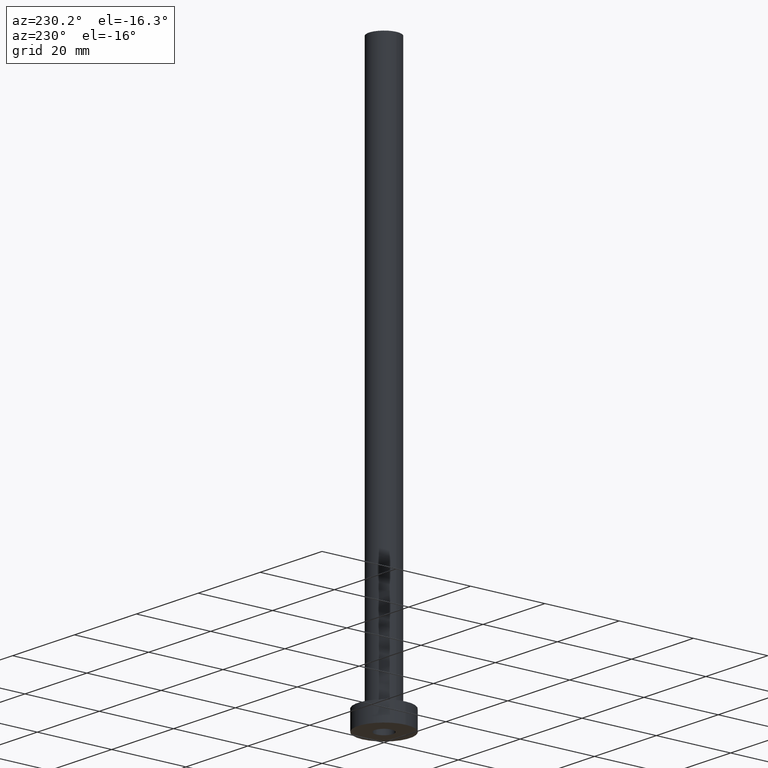
[diagram: clean part render]
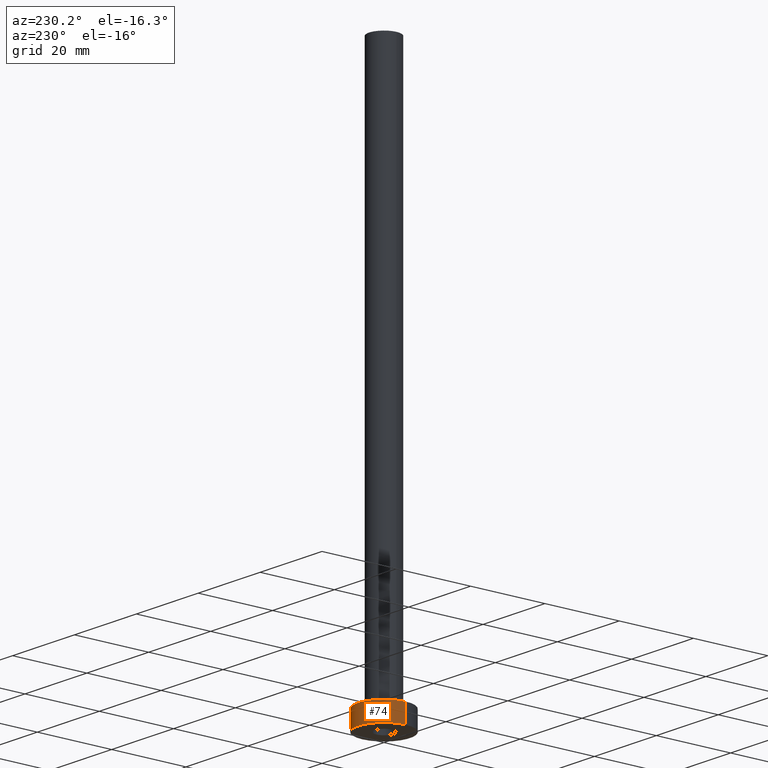
[diagram: same view with one face highlighted and labeled with its STEP entity id]
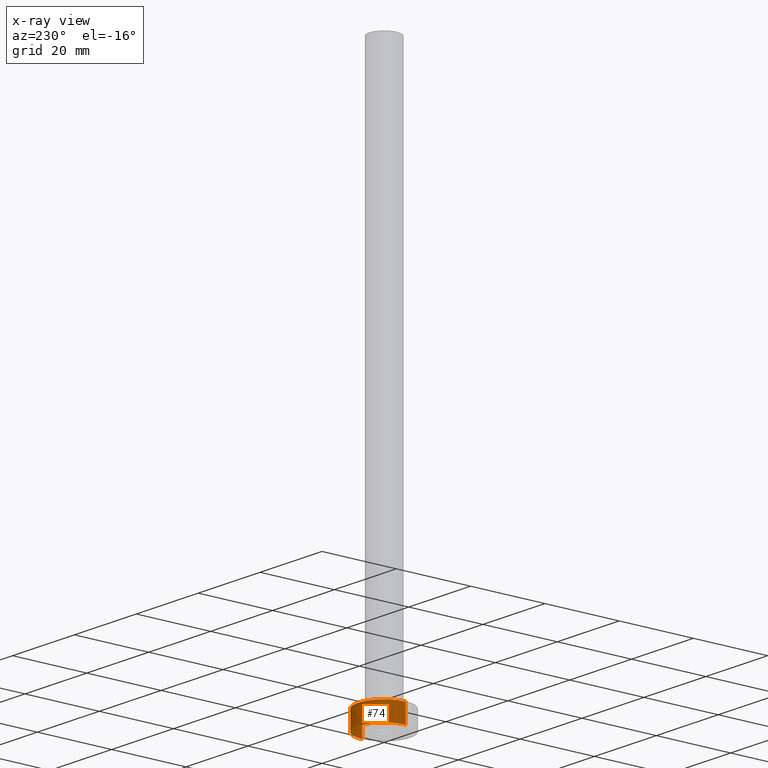
[diagram: x-ray of the same camera — body ghosted, the highlighted face saturated]
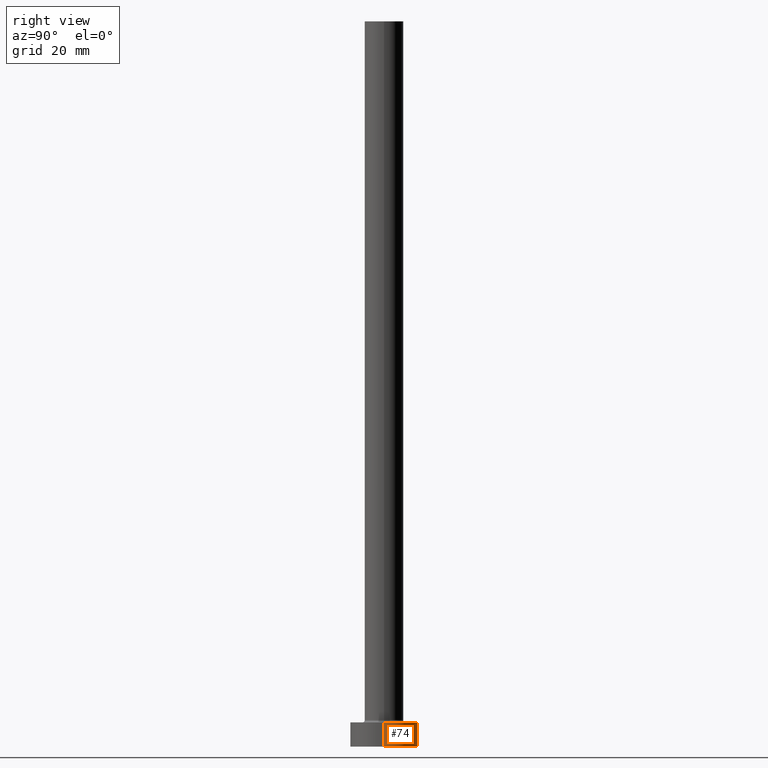
[diagram: same view with one face highlighted and labeled with its STEP entity id]
A machine part, auxiliary view. The second image highlights one B-rep face of the part: STEP entity #74.
The next image is the same camera in x-ray: the body ghosted, the highlighted face saturated — about 0% of this face is hidden behind the body in this view.
A second angle (right view) of the same face is appended — the face is thin or edge-on in the first view.
In plain terms, the highlighted cylindrical surface (edge-blend (fillet) strip) has radius 7 mm, axis along (-0, -0, -1).
Its self-contained STEP definition (entity closure, byte-faithful):
#27 = FACE_OUTER_BOUND ( 'NONE', #155, .T. ) ;
#30 = DIRECTION ( 'NONE',  ( -0.000000000000000000, -0.000000000000000000, -1.000000000000000000 ) ) ;
#40 = DIRECTION ( 'NONE',  ( 0.000000000000000000, 0.000000000000000000, 1.000000000000000000 ) ) ;
#41 = VERTEX_POINT ( 'NONE', #301 ) ;
#74 = ADVANCED_FACE ( 'NONE', ( #27 ), #347, .T. ) ;
#83 = AXIS2_PLACEMENT_3D ( 'NONE', #422, #215, #461 ) ;
#90 = ORIENTED_EDGE ( 'NONE', *, *, #107, .F. ) ;
#107 = EDGE_CURVE ( 'NONE', #196, #41, #171, .T. ) ;
#118 = ORIENTED_EDGE ( 'NONE', *, *, #388, .T. ) ;
#120 = DIRECTION ( 'NONE',  ( 1.000000000000000000, 0.000000000000000000, 0.000000000000000000 ) ) ;
#121 = ORIENTED_EDGE ( 'NONE', *, *, #460, .F. ) ;
#138 = CARTESIAN_POINT ( 'NONE',  ( 7.000000000000000000, 8.572527594031473190E-16, 5.000000000000000000 ) ) ;
#142 = LINE ( 'NONE', #138, #308 ) ;
#155 = EDGE_LOOP ( 'NONE', ( #121, #118, #249, #90 ) ) ;
#161 = AXIS2_PLACEMENT_3D ( 'NONE', #443, #40, #120 ) ;
#169 = DIRECTION ( 'NONE',  ( -1.000000000000000000, 0.000000000000000000, 0.000000000000000000 ) ) ;
#171 = LINE ( 'NONE', #382, #367 ) ;
#196 = VERTEX_POINT ( 'NONE', #217 ) ;
#215 = DIRECTION ( 'NONE',  ( 0.000000000000000000, 0.000000000000000000, 1.000000000000000000 ) ) ;
#217 = CARTESIAN_POINT ( 'NONE',  ( -7.000000000000000000, 0.000000000000000000, 5.000000000000000000 ) ) ;
#242 = DIRECTION ( 'NONE',  ( -0.000000000000000000, -0.000000000000000000, -1.000000000000000000 ) ) ;
#249 = ORIENTED_EDGE ( 'NONE', *, *, #250, .T. ) ;
#250 = EDGE_CURVE ( 'NONE', #403, #41, #458, .T. ) ;
#279 = CARTESIAN_POINT ( 'NONE',  ( 7.000000000000000000, 8.572527594031473190E-16, 0.000000000000000000 ) ) ;
#282 = CARTESIAN_POINT ( 'NONE',  ( 0.000000000000000000, 0.000000000000000000, 5.000000000000000000 ) ) ;
#301 = CARTESIAN_POINT ( 'NONE',  ( -7.000000000000000000, 0.000000000000000000, 0.000000000000000000 ) ) ;
#302 = CIRCLE ( 'NONE', #83, 7.000000000000000000 ) ;
#308 = VECTOR ( 'NONE', #242, 1000.000000000000000 ) ;
#328 = VERTEX_POINT ( 'NONE', #413 ) ;
#347 = CYLINDRICAL_SURFACE ( 'NONE', #354, 7.000000000000000000 ) ;
#354 = AXIS2_PLACEMENT_3D ( 'NONE', #282, #430, #169 ) ;
#367 = VECTOR ( 'NONE', #30, 1000.000000000000000 ) ;
#382 = CARTESIAN_POINT ( 'NONE',  ( -7.000000000000000000, 0.000000000000000000, 5.000000000000000000 ) ) ;
#388 = EDGE_CURVE ( 'NONE', #328, #403, #142, .T. ) ;
#403 = VERTEX_POINT ( 'NONE', #279 ) ;
#413 = CARTESIAN_POINT ( 'NONE',  ( 7.000000000000000000, 8.572527594031473190E-16, 5.000000000000000000 ) ) ;
#422 = CARTESIAN_POINT ( 'NONE',  ( 0.000000000000000000, 0.000000000000000000, 5.000000000000000000 ) ) ;
#430 = DIRECTION ( 'NONE',  ( -0.000000000000000000, -0.000000000000000000, -1.000000000000000000 ) ) ;
#443 = CARTESIAN_POINT ( 'NONE',  ( 0.000000000000000000, 0.000000000000000000, 0.000000000000000000 ) ) ;
#458 = CIRCLE ( 'NONE', #161, 7.000000000000000000 ) ;
#460 = EDGE_CURVE ( 'NONE', #328, #196, #302, .T. ) ;
#461 = DIRECTION ( 'NONE',  ( 1.000000000000000000, 0.000000000000000000, 0.000000000000000000 ) ) ;